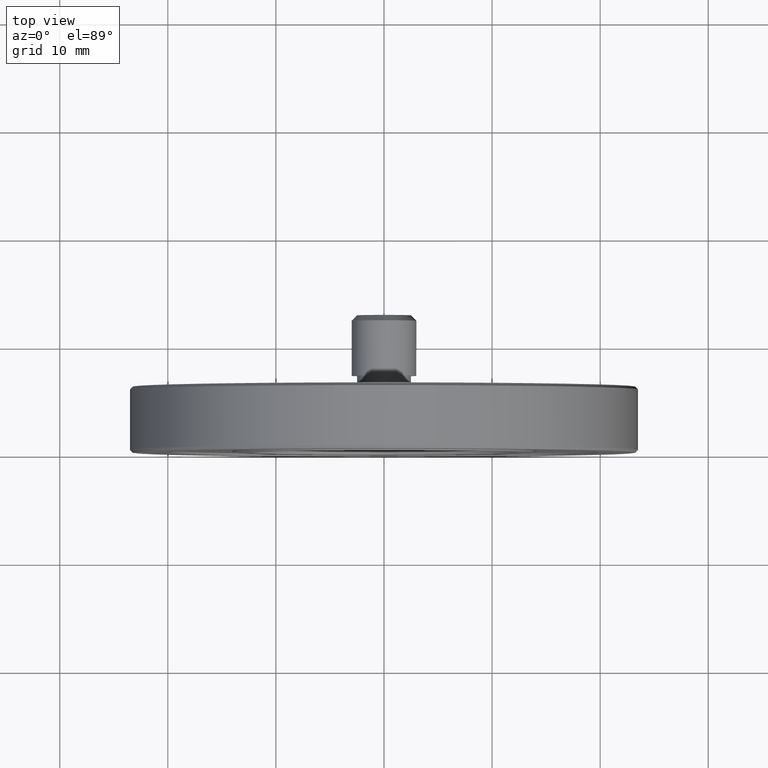
[diagram: clean part render]
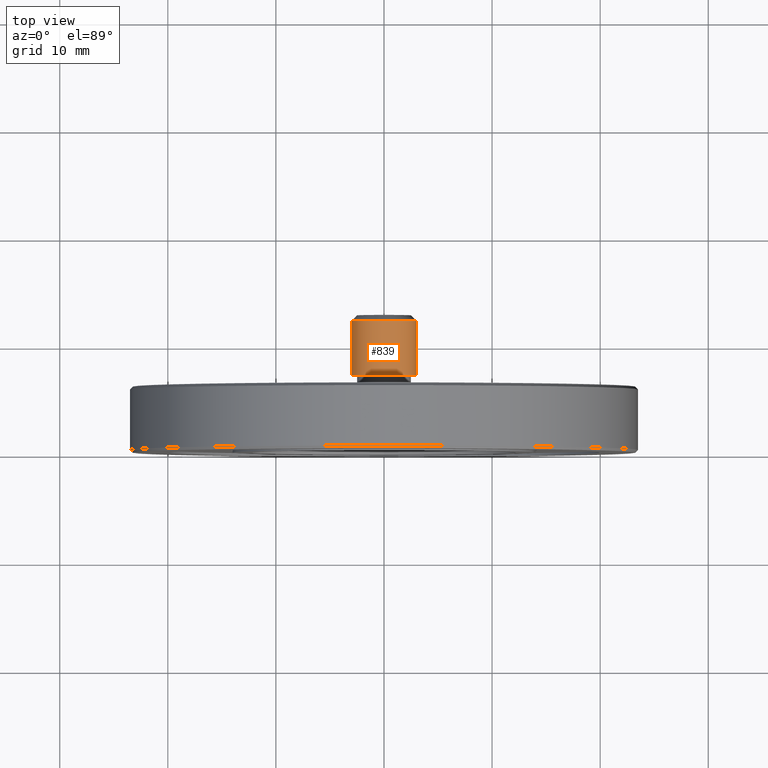
[diagram: same view with one face highlighted and labeled with its STEP entity id]
A machine part, top view. The second image highlights one B-rep face of the part: STEP entity #839.
In plain terms, the highlighted cylindrical surface (bore or boss wall) has radius 3 mm, axis along (-0, -1, -0).
Its self-contained STEP definition (entity closure, byte-faithful):
#32 = EDGE_CURVE ( 'NONE', #648, #648, #1296, .T. ) ;
#131 = DIRECTION ( 'NONE',  ( -0.000000000000000000, -1.000000000000000000, -0.000000000000000000 ) ) ;
#178 = VERTEX_POINT ( 'NONE', #480 ) ;
#191 = CYLINDRICAL_SURFACE ( 'NONE', #387, 3.000000000000000444 ) ;
#219 = EDGE_LOOP ( 'NONE', ( #1221 ) ) ;
#387 = AXIS2_PLACEMENT_3D ( 'NONE', #1016, #1023, #1230 ) ;
#431 = CARTESIAN_POINT ( 'NONE',  ( 0.000000000000000000, 7.099999999999999645, -3.000000000000000444 ) ) ;
#480 = CARTESIAN_POINT ( 'NONE',  ( 0.000000000000000000, 12.19999999999999041, -3.000000000000000444 ) ) ;
#485 = FACE_OUTER_BOUND ( 'NONE', #1334, .T. ) ;
#512 = AXIS2_PLACEMENT_3D ( 'NONE', #1248, #727, #621 ) ;
#621 = DIRECTION ( 'NONE',  ( 0.000000000000000000, 0.000000000000000000, -1.000000000000000000 ) ) ;
#648 = VERTEX_POINT ( 'NONE', #431 ) ;
#654 = DIRECTION ( 'NONE',  ( 0.000000000000000000, 0.000000000000000000, -1.000000000000000000 ) ) ;
#697 = EDGE_CURVE ( 'NONE', #178, #178, #952, .T. ) ;
#727 = DIRECTION ( 'NONE',  ( 0.000000000000000000, 1.000000000000000000, 0.000000000000000000 ) ) ;
#839 = ADVANCED_FACE ( 'NONE', ( #485, #1116 ), #191, .T. ) ;
#892 = ORIENTED_EDGE ( 'NONE', *, *, #697, .T. ) ;
#952 = CIRCLE ( 'NONE', #1235, 3.000000000000000444 ) ;
#1016 = CARTESIAN_POINT ( 'NONE',  ( 0.000000000000000000, 12.69999999999999929, 0.000000000000000000 ) ) ;
#1023 = DIRECTION ( 'NONE',  ( -0.000000000000000000, -1.000000000000000000, -0.000000000000000000 ) ) ;
#1065 = CARTESIAN_POINT ( 'NONE',  ( 0.000000000000000000, 12.19999999999999041, 0.000000000000000000 ) ) ;
#1116 = FACE_OUTER_BOUND ( 'NONE', #219, .T. ) ;
#1221 = ORIENTED_EDGE ( 'NONE', *, *, #32, .T. ) ;
#1230 = DIRECTION ( 'NONE',  ( 0.000000000000000000, 0.000000000000000000, -1.000000000000000000 ) ) ;
#1235 = AXIS2_PLACEMENT_3D ( 'NONE', #1065, #131, #654 ) ;
#1248 = CARTESIAN_POINT ( 'NONE',  ( 0.000000000000000000, 7.099999999999999645, 0.000000000000000000 ) ) ;
#1296 = CIRCLE ( 'NONE', #512, 3.000000000000000444 ) ;
#1334 = EDGE_LOOP ( 'NONE', ( #892 ) ) ;